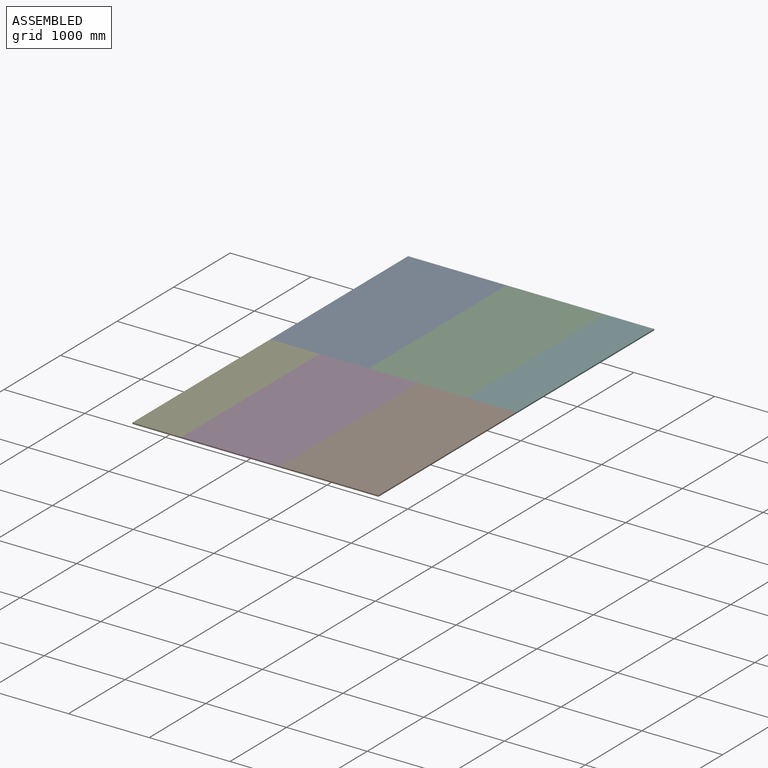
[diagram: assembled view]
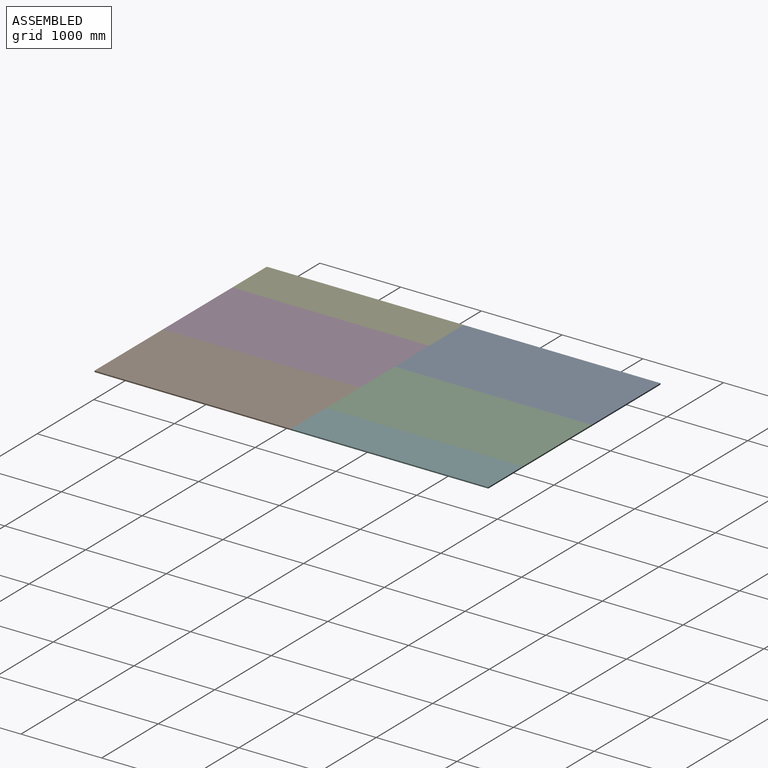
[diagram: assembled view, second angle]
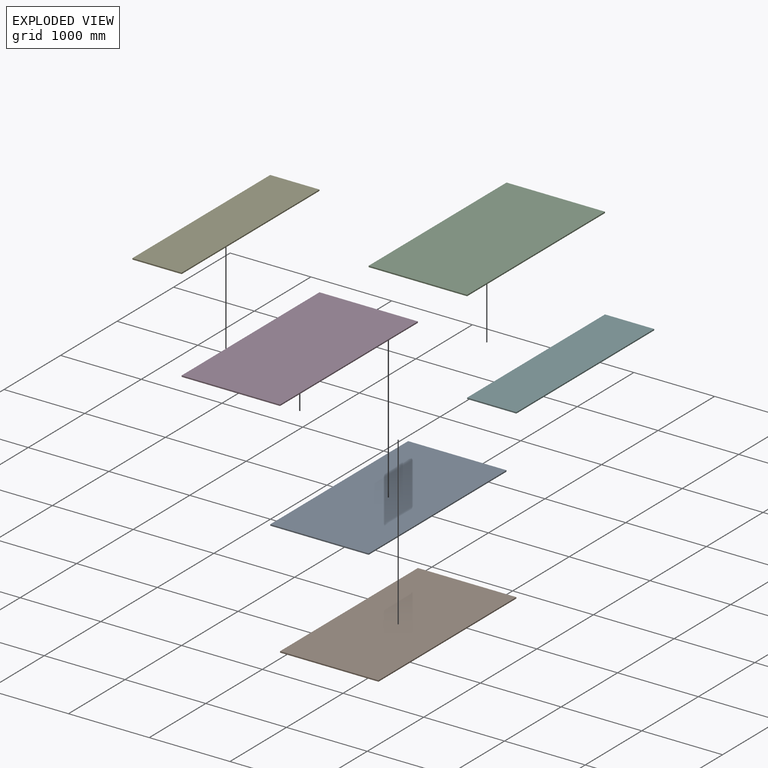
[diagram: exploded view]
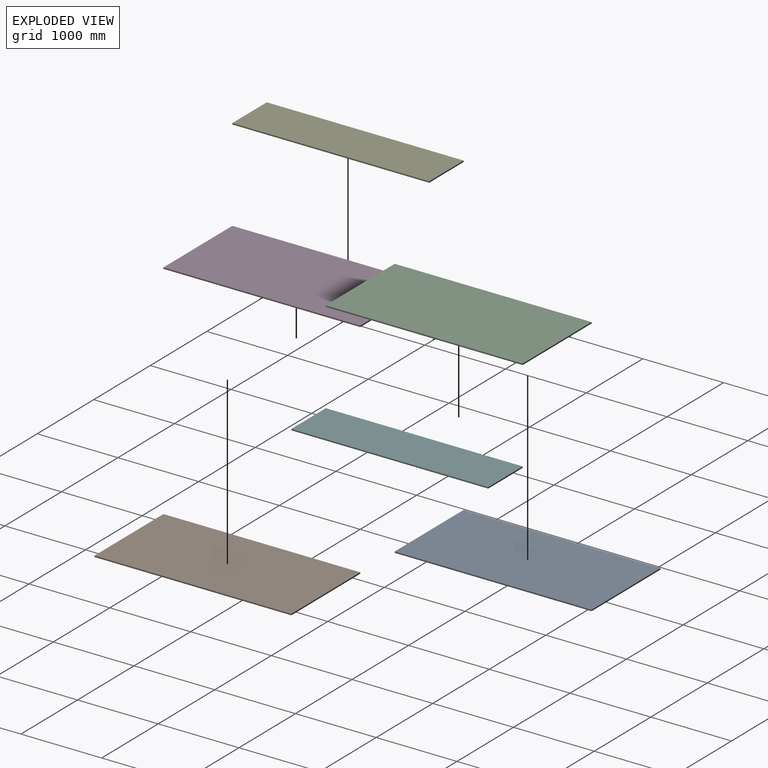
[diagram: exploded view, second angle]
ASSEMBLY  parts=6 mates=4
PART A: 6 faces, bbox 1219.2x2438.4x15.9 mm
  f0: plane 2438.4x15.88mm, normal (-1,0,0), area 38709.6mm2, adj f1,f3,f4,f5
  f1: plane 1219.2x15.88mm, normal (0,-1,0), area 19354.8mm2, adj f0,f2,f4,f5
  f2: plane 2438.4x15.88mm, normal (1,0,0), area 38709.6mm2, adj f1,f3,f4,f5
  f3: plane 1219.2x15.88mm, normal (0,1,0), area 19354.8mm2, adj f0,f2,f4,f5
  f4: plane 2438.4x1219.2mm, normal (0,0,1), area 2972897.3mm2, adj f0,f1,f2,f3
  f5: plane 2438.4x1219.2mm, normal (0,0,-1), area 2972897.3mm2, adj f0,f1,f2,f3
PART B: same geometry as A
PART C: same geometry as A
PART D: same geometry as A
PART E: 6 faces, bbox 609.6x2438.4x15.9 mm
  f0: plane 609.6x15.88mm, normal (0,1,0), area 9677.4mm2, adj f1,f3,f4,f5
  f1: plane 2438.4x15.88mm, normal (-1,0,0), area 38709.6mm2, adj f0,f2,f4,f5
  f2: plane 609.6x15.88mm, normal (0,-1,0), area 9677.4mm2, adj f1,f3,f4,f5
  f3: plane 2438.4x15.88mm, normal (1,0,0), area 38709.6mm2, adj f0,f2,f4,f5
  f4: plane 2438.4x609.6mm, normal (0,0,1), area 1486448.6mm2, adj f0,f1,f2,f3
  f5: plane 2438.4x609.6mm, normal (0,0,-1), area 1486448.6mm2, adj f0,f1,f2,f3
PART F: same geometry as E
PLACE A rot(axis=(-0.05,-0.02,1),0deg) t=(-1976.71,718.82,-1108.99)mm
PLACE B rot(axis=(0,0,1),0deg) t=(-147.91,-1719.58,-1108.99)mm
PLACE C rot(axis=(-0.02,0,1),0deg) t=(-757.51,718.82,-1108.99)mm
PLACE D rot(axis=(0,0.01,1),0deg) t=(-1367.11,-1719.58,-1108.99)mm
PLACE E rot(axis=(0,0,-1),0deg) t=(-4569.53,-1719.58,-1108.99)mm
PLACE F rot(axis=(-0.02,0,1),0deg) t=(-2131.13,718.82,-1108.99)mm
MATE fastened E.f4 <-> D.f4  axis (0,0,1) through (-1195.52,718.82,-1093.12)mm
MATE fastened D.f4 <-> B.f4  axis (0,0,1) through (23.68,-1719.58,-1093.12)mm
MATE fastened F.f4 <-> C.f4  axis (0,0,1) through (633.28,718.82,-1093.12)mm
MATE fastened C.f4 <-> A.f4  axis (0,0,1) through (-585.92,718.82,-1093.12)mm
